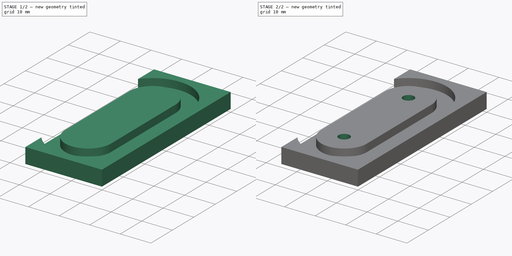
[diagram: build sequence overview — one tinted view per stage of 2, left to right]
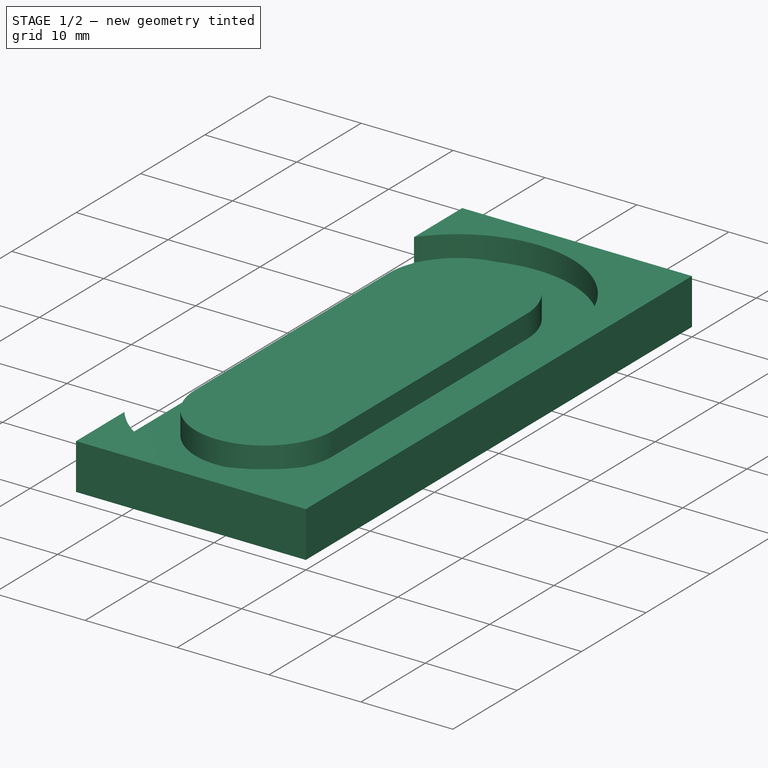
[diagram: stage 1 of 2 — iso view after this stage's code; geometry added in this stage tinted green]
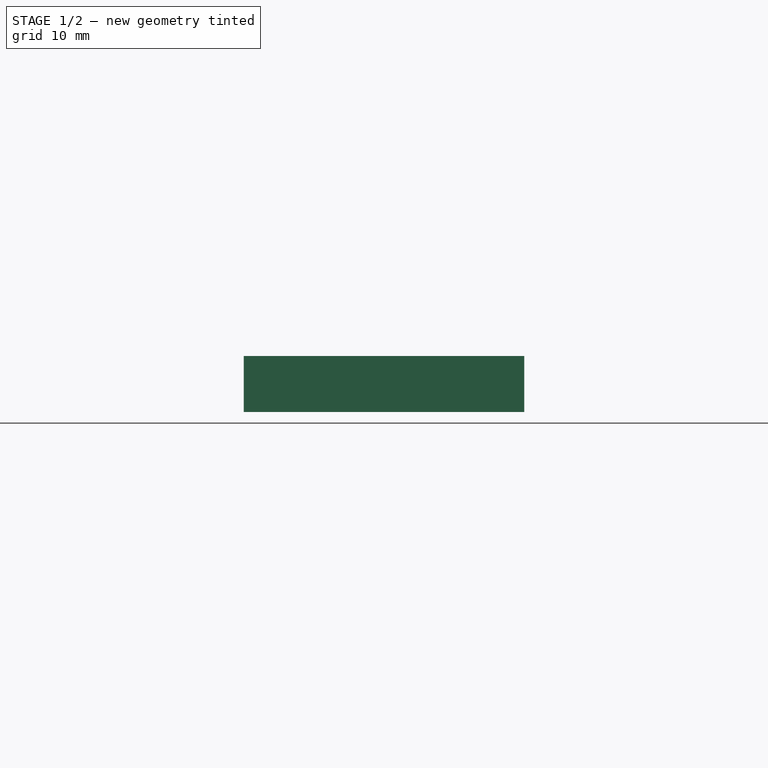
[diagram: stage 1 of 2 — front view after this stage's code; geometry added in this stage tinted green]
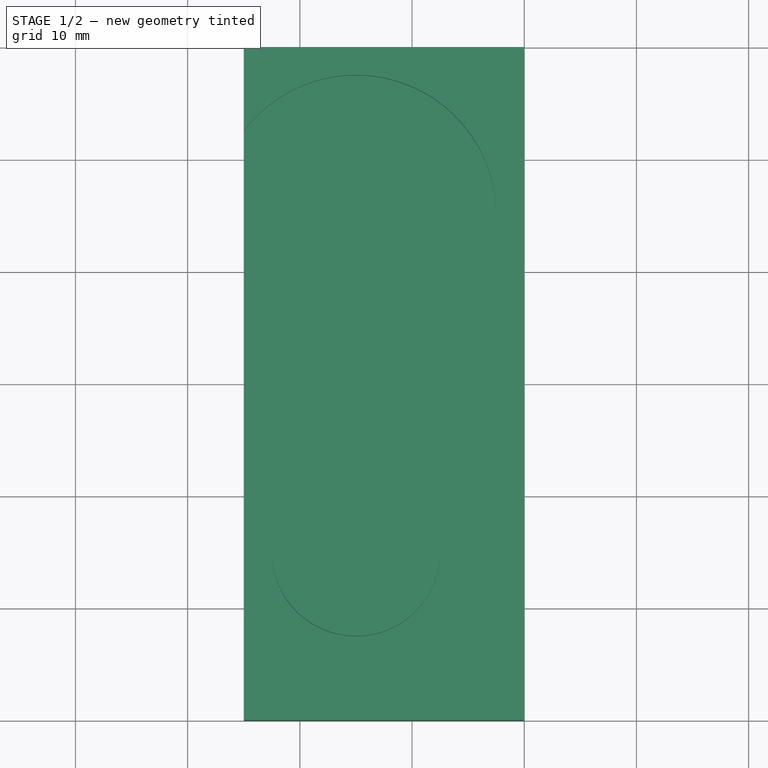
[diagram: stage 1 of 2 — top view after this stage's code; geometry added in this stage tinted green]
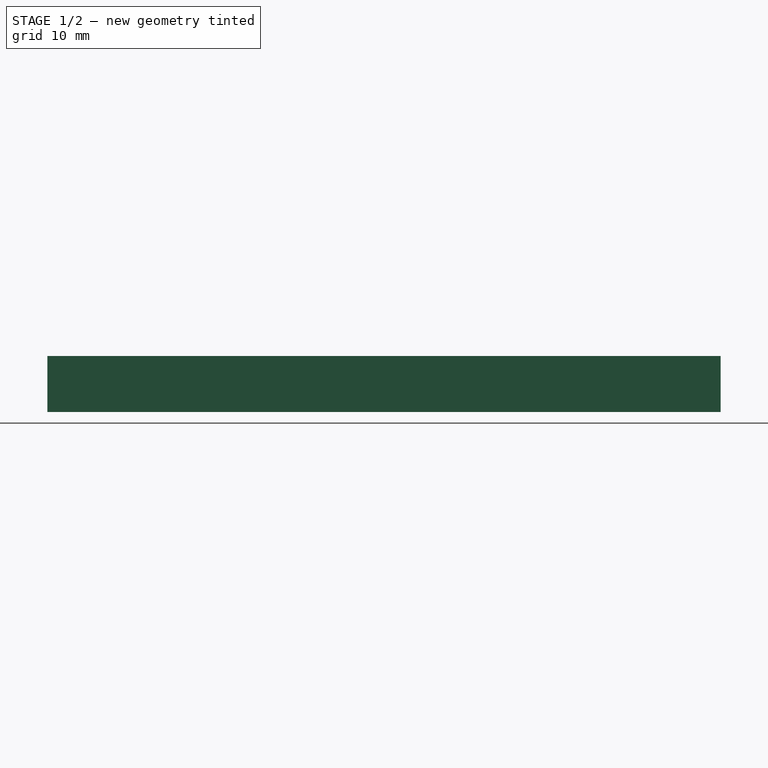
[diagram: stage 1 of 2 — right view after this stage's code; geometry added in this stage tinted green]
FCSTD DOCUMENT
Label: RecircBall2
objects: Sketcher::SketchObject×4, PartDesign::Pocket×2, PartDesign::Pad×1
note: 8 computed .brp shape members not serialized (recipe doc carries the construction recipe); baked Part::Feature solids carry a one-line shape summary decoded from their .brp

FEATURE [Sketcher::SketchObject] Sketch
  sketch-geometry (4):
    g0: LineSegment StartX=5 StartY=0 StartZ=0 EndX=30 EndY=0 EndZ=0
    g1: LineSegment StartX=30 StartY=0 StartZ=0 EndX=30 EndY=60 EndZ=0
    g2: LineSegment StartX=30 StartY=60 StartZ=0 EndX=5 EndY=60 EndZ=0
    g3: LineSegment StartX=5 StartY=60 StartZ=0 EndX=5 EndY=0 EndZ=0
  constraints (12):
    c: Coincident(g0,g1)
    c: Coincident(g1,g2)
    c: Coincident(g2,g3)
    c: Coincident(g3,g0)
    c: Horizontal(g0)
    c: Horizontal(g2)
    c: Vertical(g1)
    c: Vertical(g3)
    c: DistanceX(g2) = -25
    c: DistanceY(g1) = 60
    c: DistanceX(g0) = 5
    c: DistanceY(g0) = 0
FEATURE [PartDesign::Pad] Pad
  Length = 5
  MirroredExtent = false
  Sketch = -> Sketch
FEATURE [Sketcher::SketchObject] Sketch001
  Placement = pos=(0,0,5) rot=(0,0,1;0rad)
  Support = -> Pad [Face6]
  sketch-geometry (15):
    g0: ArcOfCircle CenterX=15 CenterY=45.0048 CenterZ=0 NormalX=0 NormalY=0 NormalZ=1 Radius=12.5 StartAngle=0 EndAngle=3.14159
    g1: ArcOfCircle CenterX=15 CenterY=45.0048 CenterZ=0 NormalX=0 NormalY=0 NormalZ=1 Radius=7.5 StartAngle=0 EndAngle=3.14159
    g2: LineSegment [constr] StartX=27.5 StartY=45.0048 StartZ=0 EndX=22.5 EndY=45.0048 EndZ=0
    g3: LineSegment [constr] StartX=22.5 StartY=45.0048 StartZ=0 EndX=15 EndY=45.0048 EndZ=0
    g4: LineSegment [constr] StartX=15 StartY=45.0048 StartZ=0 EndX=7.5 EndY=45.0048 EndZ=0
    g5: LineSegment StartX=2.5 StartY=45.0048 StartZ=0 EndX=2.5 EndY=15.0048 EndZ=0
    g6: LineSegment [constr] StartX=2.5 StartY=15.0048 StartZ=0 EndX=7.5 EndY=15.0048 EndZ=0
    g7: LineSegment [constr] StartX=7.5 StartY=15.0048 StartZ=0 EndX=15 EndY=15.0048 EndZ=0
    g8: LineSegment [constr] StartX=15 StartY=15.0048 StartZ=0 EndX=22.5 EndY=15.0048 EndZ=0
    g9: LineSegment [constr] StartX=22.5 StartY=15.0048 StartZ=0 EndX=27.5 EndY=15.0048 EndZ=0
    g10: LineSegment StartX=27.5 StartY=15.0048 StartZ=0 EndX=27.5 EndY=45.0048 EndZ=0
    g11: ArcOfCircle CenterX=15 CenterY=15.0048 CenterZ=0 NormalX=0 NormalY=0 NormalZ=1 Radius=7.5 StartAngle=3.14159 EndAngle=6.28319
    g12: ArcOfCircle CenterX=15 CenterY=15.0048 CenterZ=0 NormalX=0 NormalY=0 NormalZ=1 Radius=12.5 StartAngle=3.14159 EndAngle=6.28319
    g13: LineSegment StartX=7.5 StartY=45.0048 StartZ=0 EndX=7.5 EndY=15.0048 EndZ=0
    g14: LineSegment StartX=22.5 StartY=45.0048 StartZ=0 EndX=22.5 EndY=15.0048 EndZ=0
  constraints (40):
    c: Coincident(g1,g0)
    c: Coincident(g2,g0)
    c: Coincident(g2,g1)
    c: Coincident(g2,g3)
    c: Coincident(g3,g0)
    c: Horizontal(g3)
    c: Coincident(g3,g4)
    c: Coincident(g4,g1)
    c: Vertical(g5)
    c: Coincident(g5,g6)
    c: Horizontal(g6)
    c: Coincident(g6,g7)
    c: Horizontal(g7)
    c: Coincident(g7,g8)
    c: Horizontal(g8)
    c: Coincident(g8,g9)
    c: Horizontal(g9)
    c: Coincident(g9,g10)
    c: Coincident(g10,g0)
    c: Vertical(g10)
    c: Coincident(g11,g7)
    c: Coincident(g11,g6)
    c: Coincident(g11,g8)
    c: Coincident(g12,g7)
    c: Coincident(g12,g5)
    c: Coincident(g12,g9)
    c: Coincident(g13,g1)
    c: Coincident(g13,g6)
    c: Vertical(g13)
    c: Coincident(g14,g1)
    c: Coincident(g14,g8)
    c: Vertical(g14)
    c: Horizontal(g2)
    c: Horizontal(g4)
    c: Coincident(g5,g0)
    c: DistanceX(g9) = 5
    c: DistanceX(g6,g8) = 15
    c: DistanceY(g10) = 30
    c: DistanceX(g7) = 15
    c: DistanceY(g7) = 15.0048
FEATURE [PartDesign::Pocket] Pocket
  Length = 2.5
  Sketch = -> Sketch001
  Type = 0
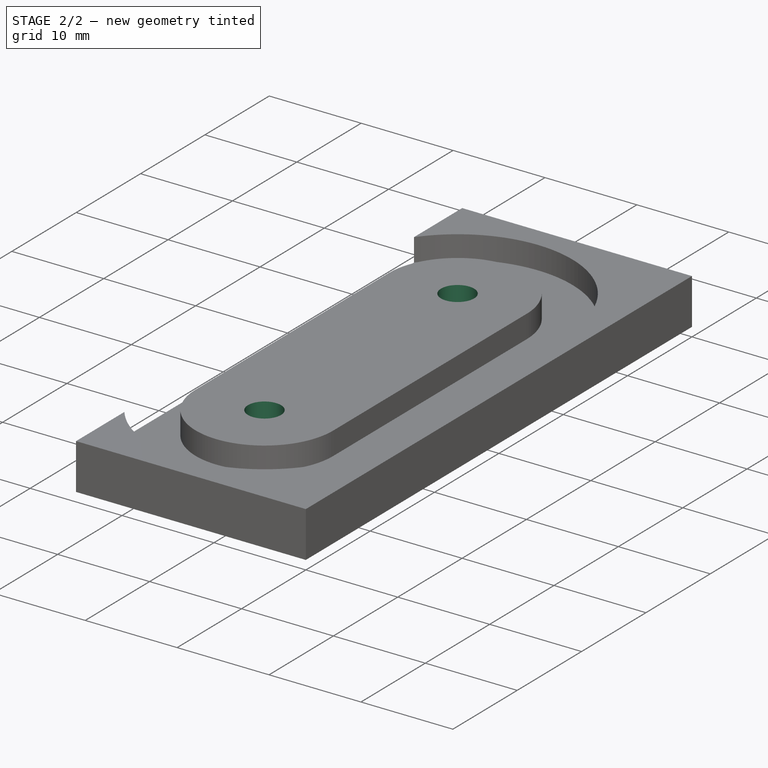
[diagram: stage 2 of 2 — iso view after this stage's code; geometry added in this stage tinted green]
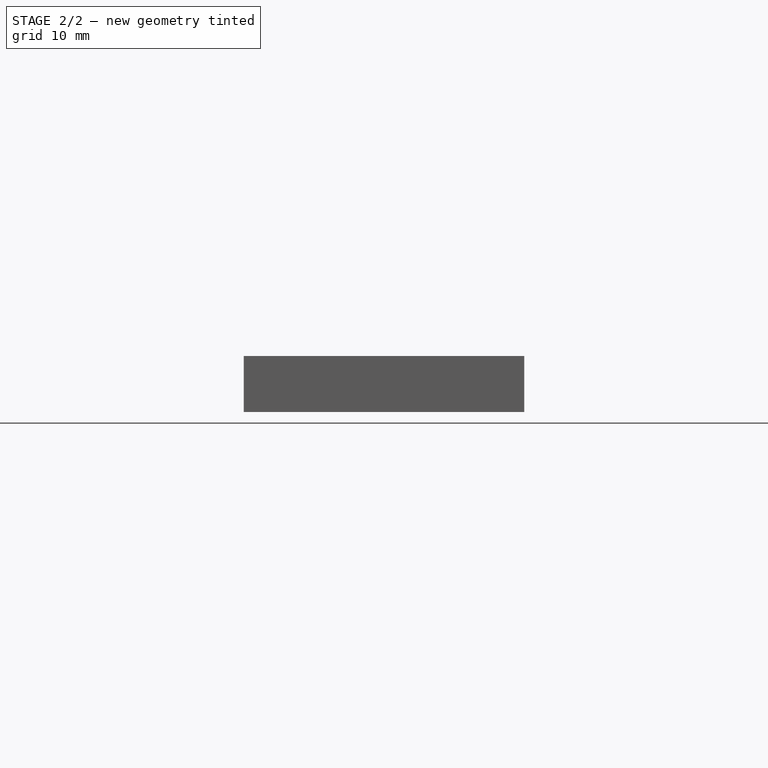
[diagram: stage 2 of 2 — front view after this stage's code; geometry added in this stage tinted green]
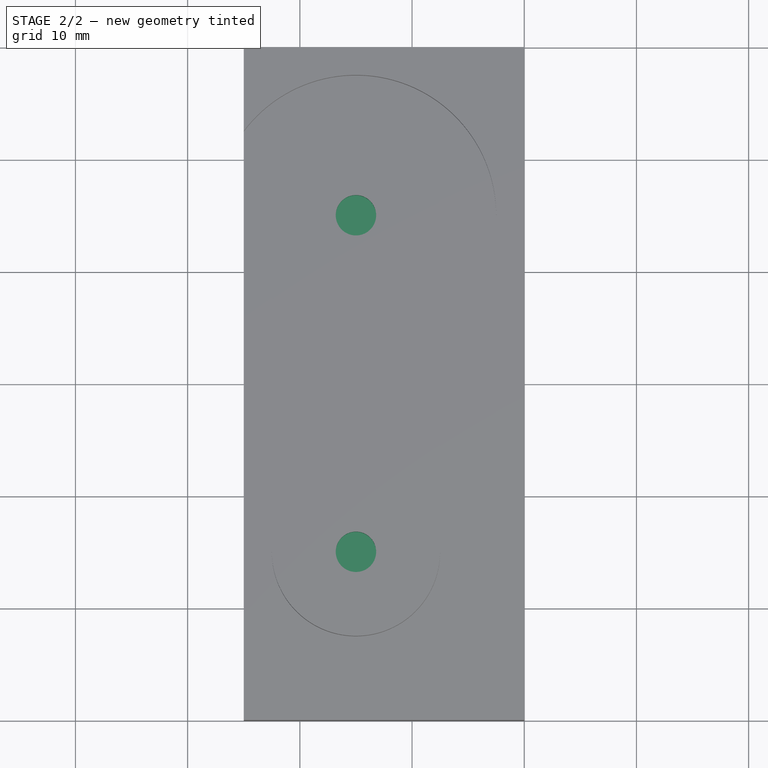
[diagram: stage 2 of 2 — top view after this stage's code; geometry added in this stage tinted green]
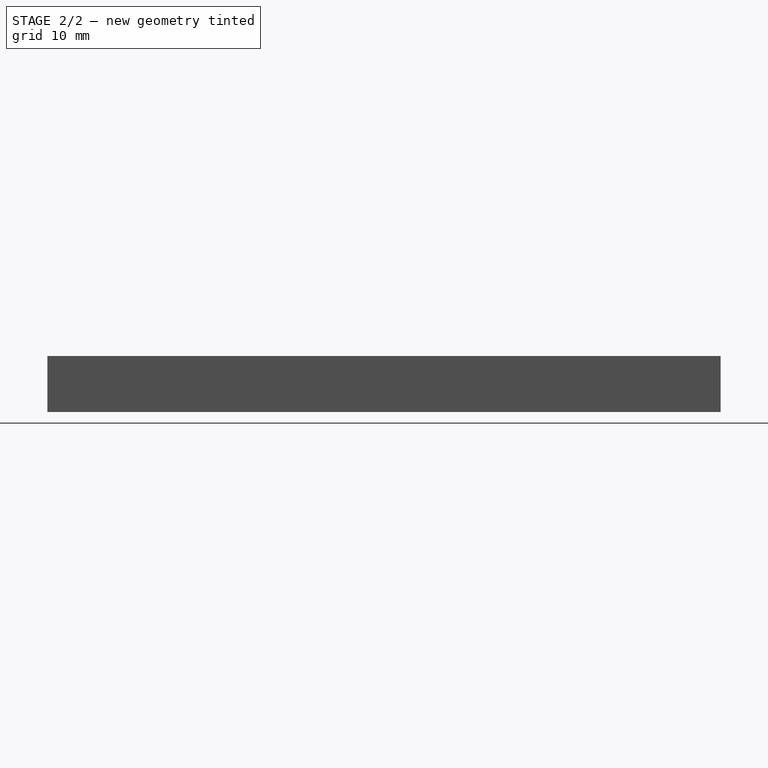
[diagram: stage 2 of 2 — right view after this stage's code; geometry added in this stage tinted green]
FEATURE [Sketcher::SketchObject] Sketch002
  Placement = pos=(0,0,5) rot=(0,0,1;0rad)
  Support = -> Pocket [Face15]
  sketch-geometry (3):
    g0: Circle CenterX=15 CenterY=45 CenterZ=0 NormalX=0 NormalY=0 NormalZ=1 Radius=1.8
    g1: Circle CenterX=15 CenterY=15 CenterZ=0 NormalX=0 NormalY=0 NormalZ=1 Radius=1.8
    g2: LineSegment [constr] StartX=15 StartY=45 StartZ=0 EndX=15 EndY=15 EndZ=0
  constraints (8):
    c: Vertical(g2)
    c: Coincident(g1,g2)
    c: Coincident(g0,g2)
    c: Equal(g0,g1)
    c: Radius(g0) = 1.8
    c: DistanceY(g2) = -30
    c: DistanceX(g1) = 15
    c: DistanceY(g1) = 15
FEATURE [PartDesign::Pocket] Pocket001
  Length = 1.8
  Sketch = -> Sketch002
  Type = 0
FEATURE [Sketcher::SketchObject] Sketch003
  Placement = pos=(0,0,0) rot=(1,0,0;3.14159rad)
  Support = -> Pocket001 [Face4]
  sketch-geometry (11):
    g0: LineSegment StartX=12.1952 StartY=-16.8972 StartZ=0 EndX=12.1952 EndY=-11.7396 EndZ=0
    g1: LineSegment StartX=12.1952 StartY=-11.7396 StartZ=0 EndX=16.6618 EndY=-9.16087 EndZ=0
    g2: LineSegment StartX=16.6618 StartY=-9.16087 StartZ=0 EndX=21.1284 EndY=-11.7396 EndZ=0
    g3: LineSegment StartX=21.1284 StartY=-11.7396 StartZ=0 EndX=21.1284 EndY=-16.8972 EndZ=0
    g4: LineSegment StartX=21.1284 StartY=-16.8972 StartZ=0 EndX=16.6618 EndY=-19.476 EndZ=0
    g5: LineSegment StartX=16.6618 StartY=-19.476 StartZ=0 EndX=12.1952 EndY=-16.8972 EndZ=0
    g6: LineSegment [constr] StartX=12.1952 StartY=-16.8972 StartZ=0 EndX=16.6618 EndY=-14.3184 EndZ=0
    g7: LineSegment [constr] StartX=16.6618 StartY=-14.3184 StartZ=0 EndX=12.1952 EndY=-11.7396 EndZ=0
    g8: LineSegment [constr] StartX=21.1284 StartY=-11.7396 StartZ=0 EndX=16.6618 EndY=-14.3184 EndZ=0
    g9: LineSegment [constr] StartX=16.6618 StartY=-14.3184 StartZ=0 EndX=21.1284 EndY=-16.8972 EndZ=0
    g10: LineSegment [constr] StartX=16.6618 StartY=-14.3184 StartZ=0 EndX=16.6618 EndY=-19.476 EndZ=0
  constraints (27):
    c: Vertical(g0)
    c: Coincident(g0,g1)
    c: Coincident(g1,g2)
    c: Coincident(g2,g3)
    c: Vertical(g3)
    c: Coincident(g3,g4)
    c: Coincident(g4,g5)
    c: Coincident(g5,g0)
    c: Coincident(g6,g0)
    c: Coincident(g6,g7)
    c: Coincident(g7,g0)
    c: Coincident(g8,g6)
    c: Coincident(g8,g9)
    c: Coincident(g9,g3)
    c: Coincident(g10,g6)
    c: Coincident(g10,g4)
    c: Vertical(g10)
    c: Equal(g7,g6)
    c: Equal(g6,g10)
    c: Equal(g10,g9)
    c: Equal(g9,g8)
    c: Equal(g2,g1)
    c: Equal(g1,g0)
    c: Equal(g0,g5)
    c: Equal(g5,g4)
    c: Equal(g4,g3)
    c: Coincident(g8,g2)
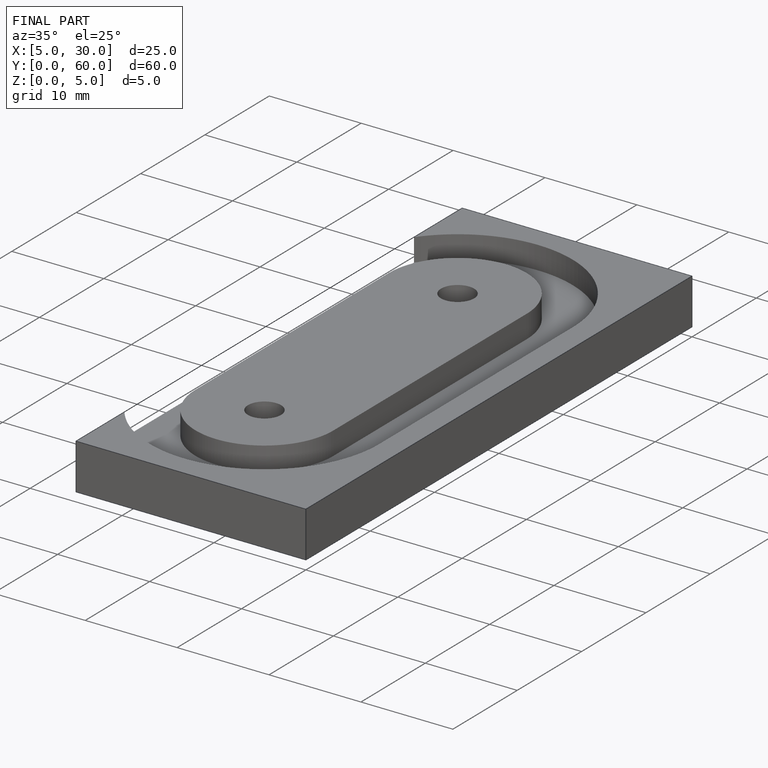
[diagram: finished part — iso view with bounding-box wireframe]
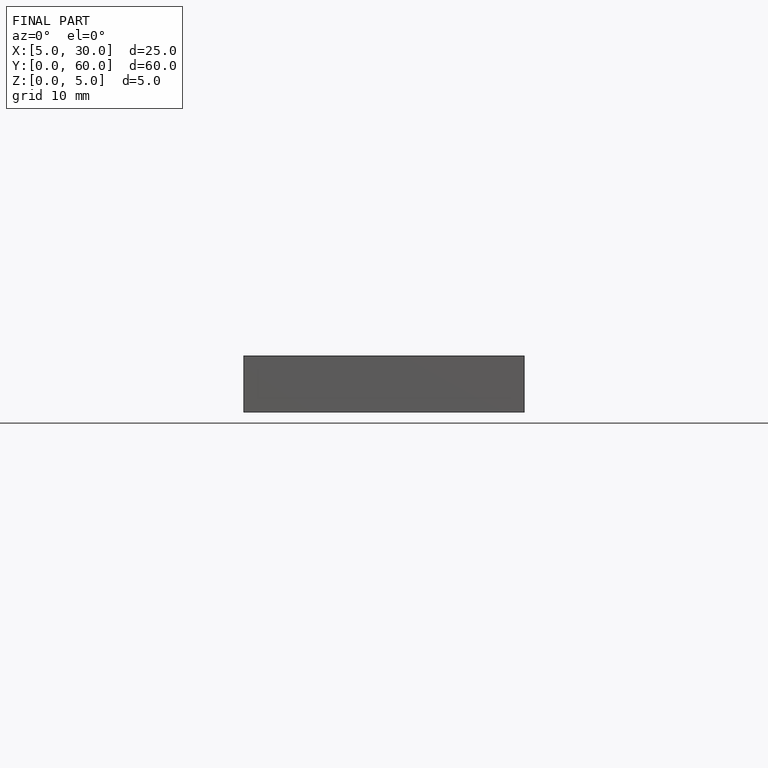
[diagram: finished part — front view with bounding-box wireframe]
